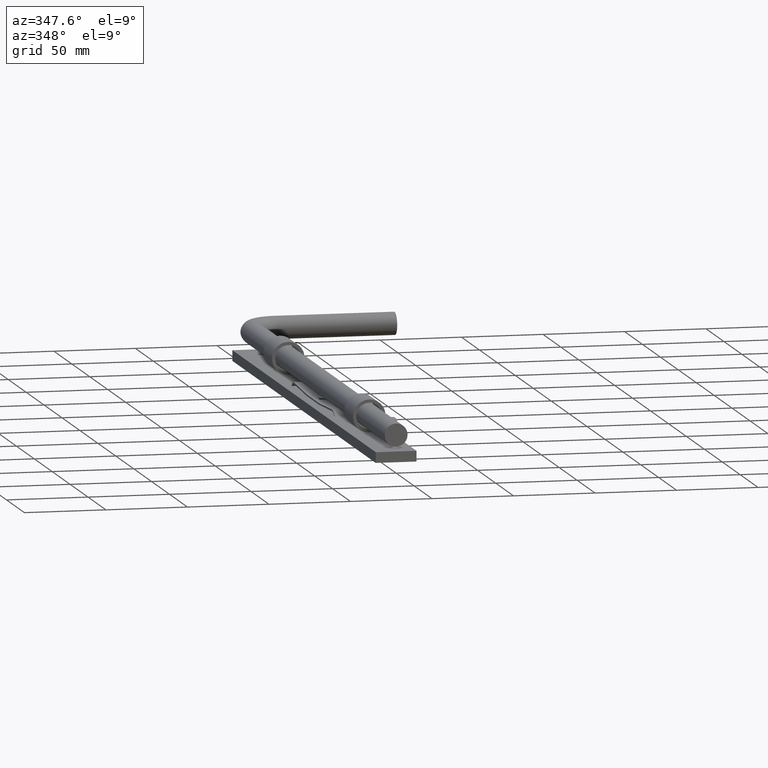
[diagram: clean part render]
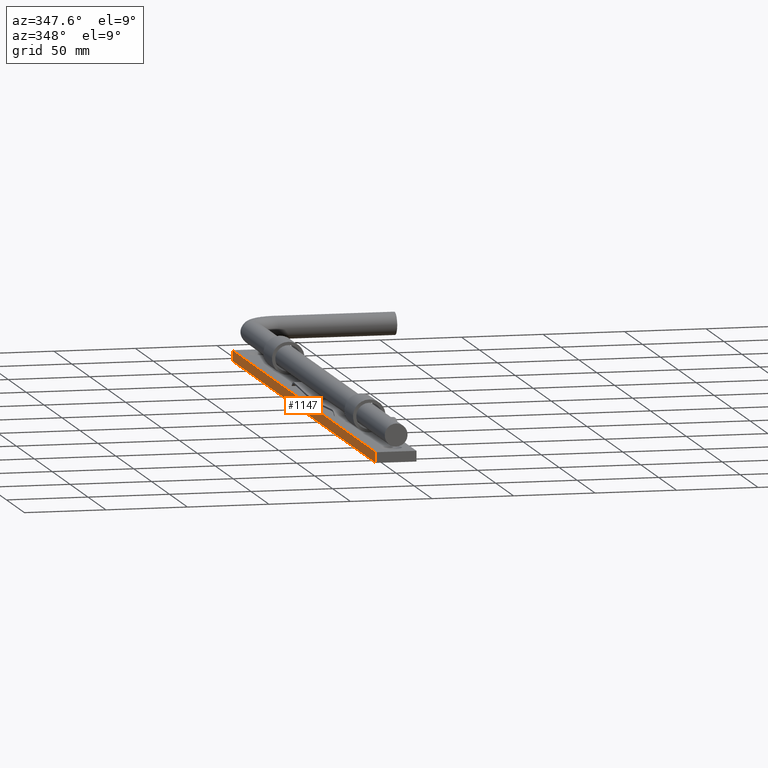
[diagram: same view with one face highlighted and labeled with its STEP entity id]
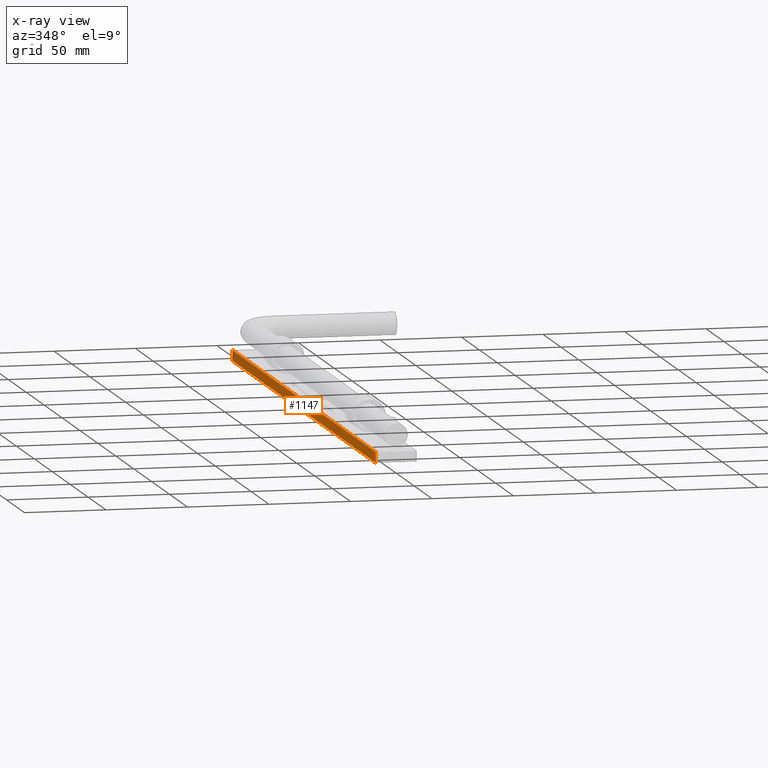
[diagram: x-ray of the same camera — body ghosted, the highlighted face saturated]
A machine part, auxiliary view. The second image highlights one B-rep face of the part: STEP entity #1147.
The next image is the same camera in x-ray: the body ghosted, the highlighted face saturated — about 0% of this face is hidden behind the body in this view.
In plain terms, the highlighted planar face has unit normal (1, 0, -0).
Its self-contained STEP definition (entity closure, byte-faithful):
#442 = CARTESIAN_POINT ( 'NONE',  ( -12.50000000000003908, 200.0000000000000853, 6.500000000000000000 ) ) ;
#471 = CARTESIAN_POINT ( 'NONE',  ( -12.50000000000003908, 200.0000000000000853, 0.000000000000000000 ) ) ;
#535 = AXIS2_PLACEMENT_3D ( 'NONE', #12394, #8426, #8509 ) ;
#557 = DIRECTION ( 'NONE',  ( -0.000000000000000000, -0.000000000000000000, -1.000000000000000000 ) ) ;
#1147 = ADVANCED_FACE ( 'NONE', ( #5145 ), #1701, .F. ) ;
#1477 = CARTESIAN_POINT ( 'NONE',  ( -12.49999999999998401, -199.9999999999999716, 6.500000000000000000 ) ) ;
#1638 = EDGE_CURVE ( 'NONE', #12362, #8343, #2734, .T. ) ;
#1701 = PLANE ( 'NONE',  #535 ) ;
#1768 = LINE ( 'NONE', #1477, #7028 ) ;
#2105 = EDGE_LOOP ( 'NONE', ( #8999, #11356, #3490, #5854 ) ) ;
#2734 = LINE ( 'NONE', #2797, #6810 ) ;
#2797 = CARTESIAN_POINT ( 'NONE',  ( -12.50000000000003908, 200.0000000000000853, 6.500000000000000000 ) ) ;
#3490 = ORIENTED_EDGE ( 'NONE', *, *, #1638, .F. ) ;
#4246 = DIRECTION ( 'NONE',  ( -0.000000000000000000, -0.000000000000000000, -1.000000000000000000 ) ) ;
#4363 = CARTESIAN_POINT ( 'NONE',  ( -12.49999999999998401, -199.9999999999999716, 6.500000000000000000 ) ) ;
#5145 = FACE_OUTER_BOUND ( 'NONE', #2105, .T. ) ;
#5484 = VECTOR ( 'NONE', #4246, 1000.000000000000000 ) ;
#5798 = CARTESIAN_POINT ( 'NONE',  ( -12.50000000000003908, 200.0000000000000853, 6.500000000000000000 ) ) ;
#5854 = ORIENTED_EDGE ( 'NONE', *, *, #7937, .T. ) ;
#5971 = VERTEX_POINT ( 'NONE', #6303 ) ;
#6303 = CARTESIAN_POINT ( 'NONE',  ( -12.49999999999998401, -199.9999999999999716, 0.000000000000000000 ) ) ;
#6379 = VERTEX_POINT ( 'NONE', #471 ) ;
#6399 = EDGE_CURVE ( 'NONE', #8343, #5971, #1768, .T. ) ;
#6723 = LINE ( 'NONE', #11417, #11513 ) ;
#6810 = VECTOR ( 'NONE', #11479, 1000.000000000000000 ) ;
#6858 = LINE ( 'NONE', #442, #5484 ) ;
#6862 = EDGE_CURVE ( 'NONE', #6379, #5971, #6723, .T. ) ;
#7028 = VECTOR ( 'NONE', #557, 1000.000000000000000 ) ;
#7937 = EDGE_CURVE ( 'NONE', #12362, #6379, #6858, .T. ) ;
#8343 = VERTEX_POINT ( 'NONE', #4363 ) ;
#8426 = DIRECTION ( 'NONE',  ( 1.000000000000000000, 1.387778780781445676E-16, -0.000000000000000000 ) ) ;
#8509 = DIRECTION ( 'NONE',  ( -1.387778780781445676E-16, 1.000000000000000000, 0.000000000000000000 ) ) ;
#8999 = ORIENTED_EDGE ( 'NONE', *, *, #6862, .T. ) ;
#11356 = ORIENTED_EDGE ( 'NONE', *, *, #6399, .F. ) ;
#11417 = CARTESIAN_POINT ( 'NONE',  ( -12.50000000000003908, 200.0000000000000853, 0.000000000000000000 ) ) ;
#11479 = DIRECTION ( 'NONE',  ( 1.387778780781445429E-16, -1.000000000000000000, 0.000000000000000000 ) ) ;
#11513 = VECTOR ( 'NONE', #12262, 1000.000000000000000 ) ;
#12262 = DIRECTION ( 'NONE',  ( 1.387778780781445429E-16, -1.000000000000000000, 0.000000000000000000 ) ) ;
#12362 = VERTEX_POINT ( 'NONE', #5798 ) ;
#12394 = CARTESIAN_POINT ( 'NONE',  ( -12.50000000000003908, 200.0000000000000853, 6.500000000000000000 ) ) ;